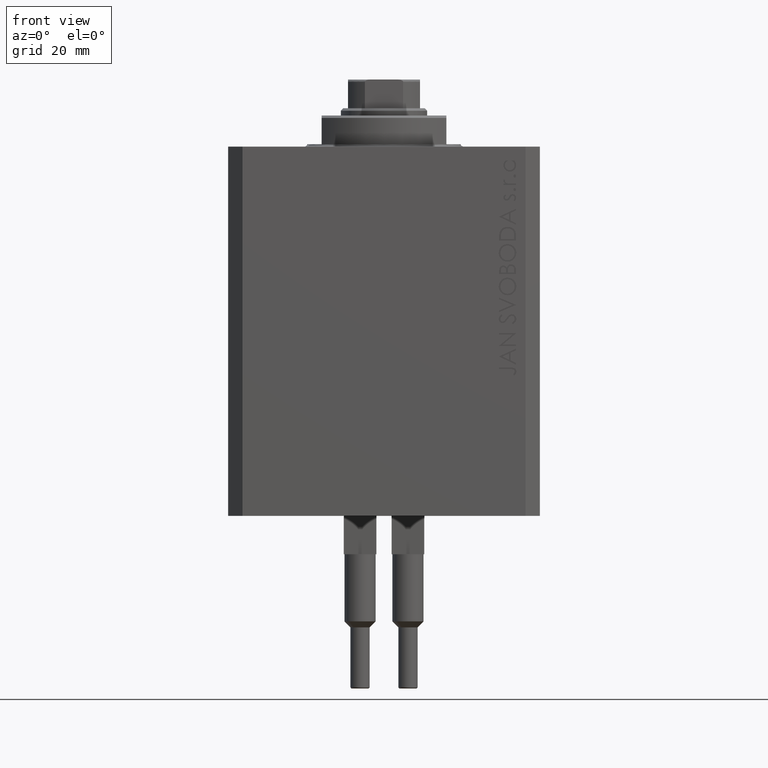
[diagram: clean part render]
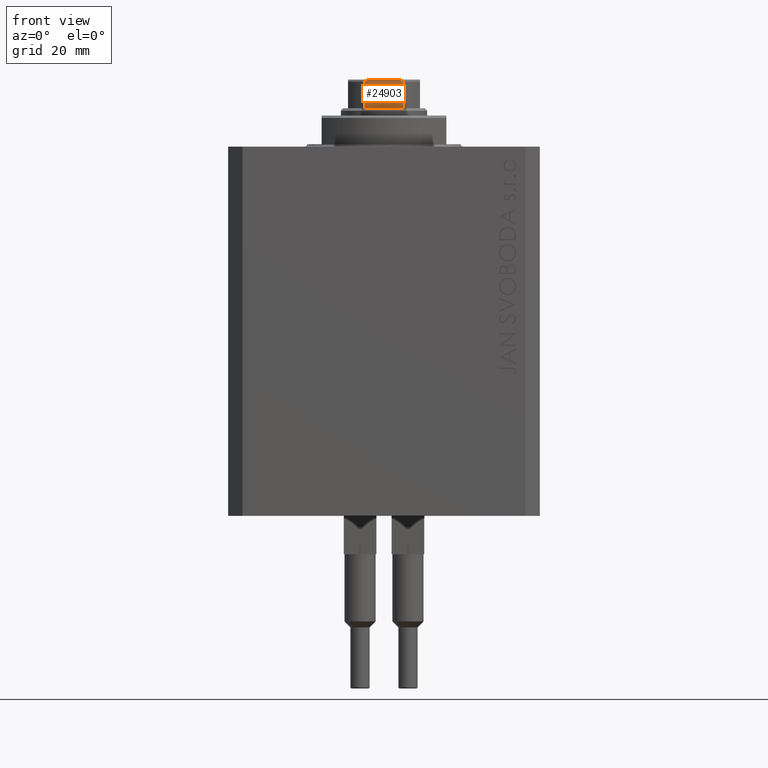
[diagram: same view with one face highlighted and labeled with its STEP entity id]
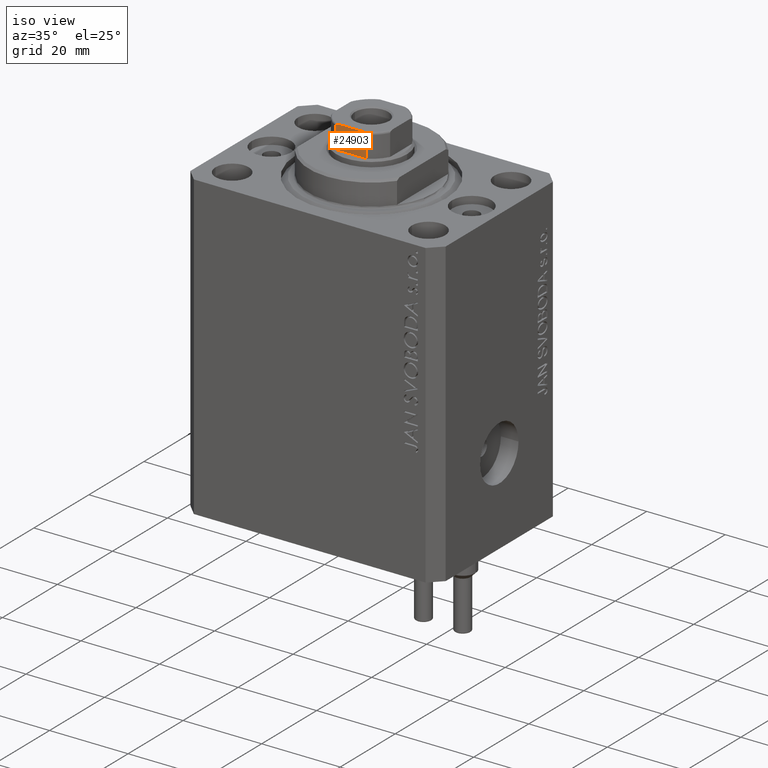
[diagram: same view with one face highlighted and labeled with its STEP entity id]
A machine part, front view. The second image highlights one B-rep face of the part: STEP entity #24903.
A second angle (iso view) of the same face is appended — the face is thin or edge-on in the first view.
In plain terms, the highlighted planar face has unit normal (-0, 1, 0).
Its self-contained STEP definition (entity closure, byte-faithful):
#66 = ORIENTED_EDGE ( 'NONE', *, *, #47743, .F. ) ;
#729 = VECTOR ( 'NONE', #47491, 1000.000000000000000 ) ;
#903 = DIRECTION ( 'NONE',  ( -1.000000000000000000, -5.782411586589358625E-17, 0.000000000000000000 ) ) ;
#1065 = LINE ( 'NONE', #37235, #6582 ) ;
#1173 = CARTESIAN_POINT ( 'NONE',  ( -4.000000000000000888, -7.500000000000000000, 78.10000000000005116 ) ) ;
#1415 = CARTESIAN_POINT ( 'NONE',  ( 4.000000000000000888, -7.500000000000000000, 83.60000000000000853 ) ) ;
#2218 = EDGE_CURVE ( 'NONE', #19811, #34472, #22664, .T. ) ;
#2314 = CARTESIAN_POINT ( 'NONE',  ( -3.710689790367152963, -7.499999999999999112, 83.94812118173423698 ) ) ;
#2561 = VECTOR ( 'NONE', #7383, 1000.000000000000000 ) ;
#2868 = CARTESIAN_POINT ( 'NONE',  ( 3.858352854028594514, -7.500000000000000000, 83.85117951603153585 ) ) ;
#3338 = CARTESIAN_POINT ( 'NONE',  ( 3.708875323752953257, -7.499999999999998224, 83.94930352055463629 ) ) ;
#4017 = CARTESIAN_POINT ( 'NONE',  ( -2.783882181415010315, -7.500000000000000888, 84.10000000000000853 ) ) ;
#4317 = FACE_OUTER_BOUND ( 'NONE', #25435, .T. ) ;
#5712 = CARTESIAN_POINT ( 'NONE',  ( -3.598393151503778142, -7.499999999999999112, 83.99012191927410242 ) ) ;
#6582 = VECTOR ( 'NONE', #30678, 1000.000000000000000 ) ;
#6885 = CARTESIAN_POINT ( 'NONE',  ( -2.783882181415010315, -7.500000000000000888, 84.10000000000000853 ) ) ;
#7383 = DIRECTION ( 'NONE',  ( -0.000000000000000000, -0.000000000000000000, 1.000000000000000000 ) ) ;
#9221 = ORIENTED_EDGE ( 'NONE', *, *, #47315, .T. ) ;
#9673 = CARTESIAN_POINT ( 'NONE',  ( 3.254991323038176620, -7.500000000000000888, 84.08269028443157822 ) ) ;
#10300 = VERTEX_POINT ( 'NONE', #23010 ) ;
#11539 = CARTESIAN_POINT ( 'NONE',  ( -3.020030562295402454, -7.500000000000001776, 84.10000000000003695 ) ) ;
#11979 = CARTESIAN_POINT ( 'NONE',  ( -7.499999999999997335, -7.500000000000000888, 78.10000000000000853 ) ) ;
#12755 = CARTESIAN_POINT ( 'NONE',  ( -3.904072061442342090, -7.500000000000001776, 83.81287056890806753 ) ) ;
#13784 = CARTESIAN_POINT ( 'NONE',  ( 2.783882181415008539, -7.500000000000000888, 84.10000000000000853 ) ) ;
#15624 = B_SPLINE_CURVE_WITH_KNOTS ( 'NONE', 3,
 ( #1415, #16241, #28841, #32233, #2868, #3338, #47525, #9673, #25452, #13784 ),
 .UNSPECIFIED., .F., .F.,
 ( 4, 2, 2, 2, 4 ),
 ( 0.000000000000000000, 0.0001779688448868775835, 0.0003559376897737544080, 0.0007118753795475307169, 0.001423750759095083335 ),
 .UNSPECIFIED. ) ;
#15975 = DIRECTION ( 'NONE',  ( -5.782411586589358625E-17, 1.000000000000000000, 0.000000000000000000 ) ) ;
#16241 = CARTESIAN_POINT ( 'NONE',  ( 4.000000000000000000, -7.499999999999999112, 83.66026396800438647 ) ) ;
#18594 = ORIENTED_EDGE ( 'NONE', *, *, #2218, .T. ) ;
#19021 = CARTESIAN_POINT ( 'NONE',  ( 4.000000000000000888, -7.500000000000000000, -0.001000000000001000089 ) ) ;
#19811 = VERTEX_POINT ( 'NONE', #42268 ) ;
#20050 = VERTEX_POINT ( 'NONE', #1173 ) ;
#20290 = CARTESIAN_POINT ( 'NONE',  ( -3.975735230428940170, -7.500000000000000000, 83.71773041319777064 ) ) ;
#21040 = CARTESIAN_POINT ( 'NONE',  ( 2.783882181415008539, -7.500000000000000888, 84.10000000000000853 ) ) ;
#22040 = AXIS2_PLACEMENT_3D ( 'NONE', #45579, #15975, #903 ) ;
#22664 = LINE ( 'NONE', #19021, #2561 ) ;
#23010 = CARTESIAN_POINT ( 'NONE',  ( -4.000000000000000888, -7.500000000000000000, 83.60000000000000853 ) ) ;
#23311 = B_SPLINE_CURVE_WITH_KNOTS ( 'NONE', 3,
 ( #4017, #11539, #41152, #5712, #2314, #46490, #12755, #20290, #46258, #23695 ),
 .UNSPECIFIED., .F., .F.,
 ( 4, 2, 2, 2, 4 ),
 ( 4.336808689942017736E-19, 0.0007049202178654018734, 0.001057380326798108448, 0.001233610381264461627, 0.001409840435730814372 ),
 .UNSPECIFIED. ) ;
#23634 = VECTOR ( 'NONE', #41598, 1000.000000000000000 ) ;
#23690 = ORIENTED_EDGE ( 'NONE', *, *, #32204, .F. ) ;
#23695 = CARTESIAN_POINT ( 'NONE',  ( -4.000000000000000888, -7.500000000000000000, 83.60000000000000853 ) ) ;
#24903 = ADVANCED_FACE ( 'NONE', ( #4317 ), #37567, .F. ) ;
#25435 = EDGE_LOOP ( 'NONE', ( #66, #36853, #23690, #9221, #18594, #34065 ) ) ;
#25452 = CARTESIAN_POINT ( 'NONE',  ( 3.020011215871896582, -7.500000000000000888, 84.09999999999999432 ) ) ;
#26986 = CARTESIAN_POINT ( 'NONE',  ( 4.000000000000000888, -7.500000000000000000, 83.60000000000000853 ) ) ;
#28841 = CARTESIAN_POINT ( 'NONE',  ( 3.976018255615930919, -7.499999999999998224, 83.71726199300995575 ) ) ;
#30429 = LINE ( 'NONE', #11979, #23634 ) ;
#30678 = DIRECTION ( 'NONE',  ( 1.000000000000000000, 5.782411586589358625E-17, 0.000000000000000000 ) ) ;
#31550 = VERTEX_POINT ( 'NONE', #6885 ) ;
#32204 = EDGE_CURVE ( 'NONE', #20050, #10300, #36804, .T. ) ;
#32233 = CARTESIAN_POINT ( 'NONE',  ( 3.904208668232357571, -7.499999999999999112, 83.81278134537497237 ) ) ;
#32925 = CARTESIAN_POINT ( 'NONE',  ( -4.000000000000000888, -7.500000000000000000, -0.001000000000001000089 ) ) ;
#33687 = EDGE_CURVE ( 'NONE', #34472, #35075, #15624, .T. ) ;
#34065 = ORIENTED_EDGE ( 'NONE', *, *, #33687, .T. ) ;
#34472 = VERTEX_POINT ( 'NONE', #26986 ) ;
#35075 = VERTEX_POINT ( 'NONE', #21040 ) ;
#36804 = LINE ( 'NONE', #32925, #729 ) ;
#36853 = ORIENTED_EDGE ( 'NONE', *, *, #40027, .T. ) ;
#37235 = CARTESIAN_POINT ( 'NONE',  ( -7.499999999999997335, -7.500000000000000888, 84.10000000000000853 ) ) ;
#37567 = PLANE ( 'NONE',  #22040 ) ;
#40027 = EDGE_CURVE ( 'NONE', #31550, #10300, #23311, .T. ) ;
#41152 = CARTESIAN_POINT ( 'NONE',  ( -3.255843148148202637, -7.500000000000001776, 84.08262378726873010 ) ) ;
#41598 = DIRECTION ( 'NONE',  ( 1.000000000000000000, 5.782411586589358625E-17, 0.000000000000000000 ) ) ;
#42268 = CARTESIAN_POINT ( 'NONE',  ( 4.000000000000000888, -7.500000000000000000, 78.10000000000005116 ) ) ;
#45579 = CARTESIAN_POINT ( 'NONE',  ( -7.499999999999997335, -7.500000000000000888, 84.10000000000000853 ) ) ;
#46258 = CARTESIAN_POINT ( 'NONE',  ( -4.000000000000208722, -7.499999999999998224, 83.66034186205206424 ) ) ;
#46490 = CARTESIAN_POINT ( 'NONE',  ( -3.857502111569844239, -7.500000000000001776, 83.85173359969213891 ) ) ;
#47315 = EDGE_CURVE ( 'NONE', #20050, #19811, #30429, .T. ) ;
#47491 = DIRECTION ( 'NONE',  ( -0.000000000000000000, -0.000000000000000000, 1.000000000000000000 ) ) ;
#47525 = CARTESIAN_POINT ( 'NONE',  ( 3.597188386589926345, -7.500000000000000000, 83.99052843393239698 ) ) ;
#47743 = EDGE_CURVE ( 'NONE', #31550, #35075, #1065, .T. ) ;